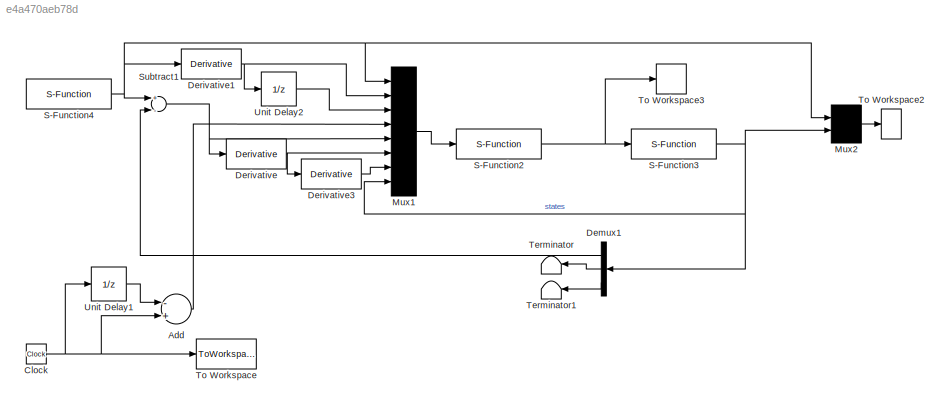
MODEL slx_e4a470aeb78d
KIND model
CONFIG AbsTol = auto
CONFIG EnableMultiTasking = on
CONFIG FixedStep = 0.01
CONFIG MaxStep = auto
CONFIG MinStep = auto
CONFIG RelTol = 1e-3
CONFIG SampleTimeConstraint = Unconstrained
CONFIG Solver = ode45
CONFIG SolverName = ode45
CONFIG StartTime = 0.0
CONFIG StopTime = RunTime
BLOCK [Sum] Add
  InputSameDT = off
  Inputs = -+
  OutDataTypeStr = Inherit: Inherit via internal rule
  Ports = [2, 1]
  SaturateOnIntegerOverflow = off
BLOCK [Clock] Clock
BLOCK [Demux] Demux1
  DisplayOption = bar
  Outputs = 3
  Ports = [1, 3]
BLOCK [Derivative] Derivative
BLOCK [Derivative] Derivative1
BLOCK [Derivative] Derivative3
BLOCK [Mux] Mux1
  Inputs = 8
  Ports = [8, 1]
BLOCK [Mux] Mux2
  Inputs = 2
  Ports = [2, 1]
BLOCK [S-Function] S-Function2
  EnableBusSupport = off
  FunctionName = chap2_5ctrl
  Ports = [1, 1]
  SFcnIsStateOwnerBlock = off
  SFunctionDeploymentMode = off
  SFunctionModules = 'chap2_5ctrl'
BLOCK [S-Function] S-Function3
  EnableBusSupport = off
  FunctionName = chap2_5plant
  Ports = [1, 1]
  SFcnIsStateOwnerBlock = off
  SFunctionDeploymentMode = off
  SFunctionModules = 'chap2_5plant'
BLOCK [S-Function] S-Function4
  EnableBusSupport = off
  FunctionName = chap2_5input
  Ports = [0, 1]
  SFcnIsStateOwnerBlock = off
  SFunctionDeploymentMode = off
  SFunctionModules = 'chap2_5input'
BLOCK [Sum] Subtract1
  InputSameDT = off
  Inputs = +-
  OutDataTypeStr = Inherit: Inherit via internal rule
  Ports = [2, 1]
  SaturateOnIntegerOverflow = off
BLOCK [Terminator] Terminator
BLOCK [Terminator] Terminator1
BLOCK [ToWorkspace] To Workspace
  FixptAsFi = on
  MaxDataPoints = inf
  Ports = [1]
  SampleTime = -1
  Save2DSignal = 3-D array (concatenate along third dimension)
  VariableName = t
BLOCK [ToWorkspace] To Workspace2
  FixptAsFi = on
  MaxDataPoints = inf
  Ports = [1]
  SampleTime = -1
  Save2DSignal = 3-D array (concatenate along third dimension)
  VariableName = y
BLOCK [ToWorkspace] To Workspace3
  FixptAsFi = on
  MaxDataPoints = inf
  Ports = [1]
  SampleTime = -1
  Save2DSignal = 3-D array (concatenate along third dimension)
  VariableName = ut
BLOCK [UnitDelay] Unit Delay1
  InputProcessing = Elements as channels (sample based)
  SampleTime = -1
BLOCK [UnitDelay] Unit Delay2
  InputProcessing = Elements as channels (sample based)
  SampleTime = -1
LINE Add:1 -> Mux1:4
NET Clock:1 -> Add:2, To Workspace:1, Unit Delay1:1
LINE Demux1:1 -> Subtract1:2
LINE Demux1:2 -> Terminator:1
LINE Demux1:3 -> Terminator1:1
NET Derivative1:1 -> Mux1:2, Unit Delay2:1
LINE Derivative3:1 -> Mux1:7
NET Derivative:1 -> Derivative3:1, Mux1:6
LINE Mux1:1 -> S-Function2:1
LINE Mux2:1 -> To Workspace2:1
NET S-Function2:1 -> S-Function3:1, To Workspace3:1
NET S-Function3:1 -> Demux1:1, Mux1:8, Mux2:2
NET S-Function4:1 -> Derivative1:1, Mux1:1, Mux2:1, Subtract1:1
NET Subtract1:1 -> Derivative:1, Mux1:5
LINE Unit Delay1:1 -> Add:1
LINE Unit Delay2:1 -> Mux1:3
note: NET lines group one-source signal fan-out (src -> all destinations, sorted); 1:1 wires keep LINE
